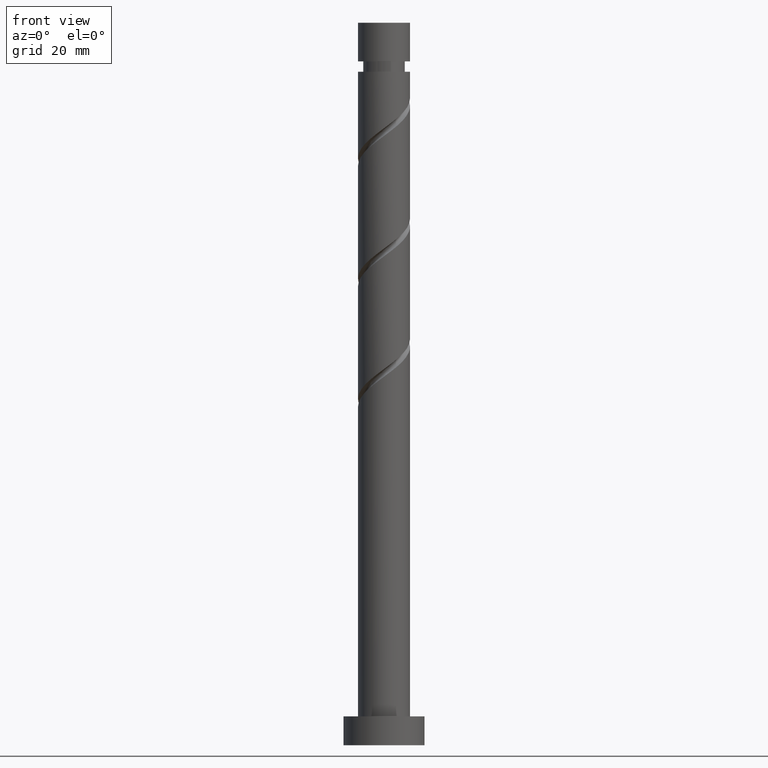
[diagram: clean part render]
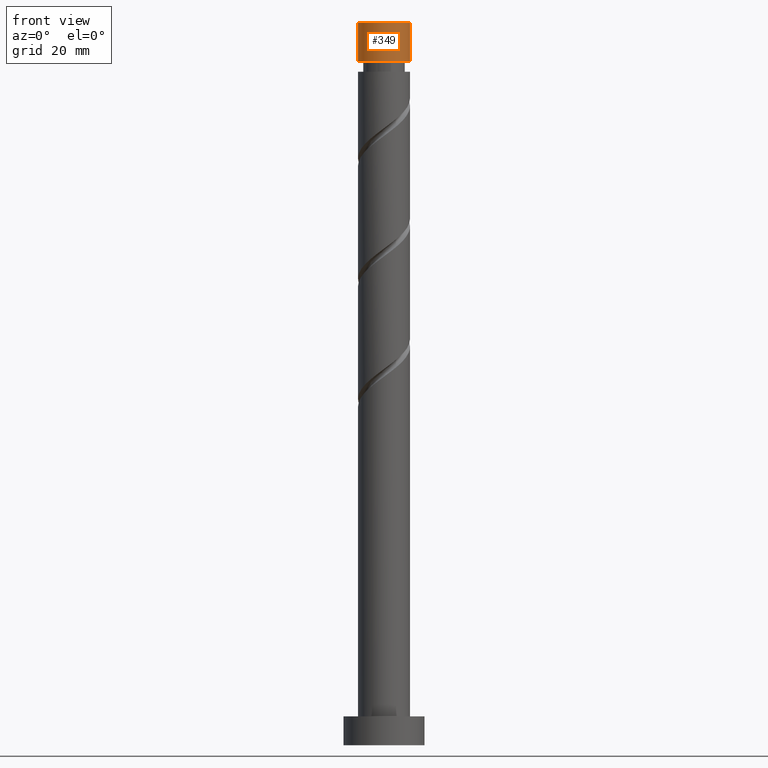
[diagram: same view with one face highlighted and labeled with its STEP entity id]
A machine part, front view. The second image highlights one B-rep face of the part: STEP entity #349.
In plain terms, the highlighted cylindrical surface (edge-blend (fillet) strip) has radius 4.5 mm, axis along (-0, -0, -1).
Its self-contained STEP definition (entity closure, byte-faithful):
#2 = EDGE_CURVE ( 'NONE', #1150, #1534, #122, .T. ) ;
#60 = CARTESIAN_POINT ( 'NONE',  ( 4.500000000000000000, 5.510910596163088569E-16, 125.0000000000000000 ) ) ;
#100 = ORIENTED_EDGE ( 'NONE', *, *, #2, .F. ) ;
#122 = CIRCLE ( 'NONE', #1270, 4.500000000000000000 ) ;
#185 = DIRECTION ( 'NONE',  ( 0.000000000000000000, 0.000000000000000000, 1.000000000000000000 ) ) ;
#186 = CARTESIAN_POINT ( 'NONE',  ( 0.000000000000000000, 0.000000000000000000, 125.0000000000000000 ) ) ;
#201 = CARTESIAN_POINT ( 'NONE',  ( -4.500000000000000000, 0.000000000000000000, 125.0000000000000000 ) ) ;
#262 = EDGE_CURVE ( 'NONE', #1534, #1540, #1154, .T. ) ;
#288 = LINE ( 'NONE', #994, #866 ) ;
#349 = ADVANCED_FACE ( 'NONE', ( #806 ), #1531, .T. ) ;
#416 = DIRECTION ( 'NONE',  ( -0.000000000000000000, -0.000000000000000000, -1.000000000000000000 ) ) ;
#450 = DIRECTION ( 'NONE',  ( -0.000000000000000000, -0.000000000000000000, -1.000000000000000000 ) ) ;
#458 = DIRECTION ( 'NONE',  ( -1.000000000000000000, 0.000000000000000000, 0.000000000000000000 ) ) ;
#484 = CARTESIAN_POINT ( 'NONE',  ( 4.500000000000000000, 5.510910596163088569E-16, 125.0000000000000000 ) ) ;
#509 = AXIS2_PLACEMENT_3D ( 'NONE', #186, #450, #799 ) ;
#645 = ORIENTED_EDGE ( 'NONE', *, *, #262, .F. ) ;
#760 = DIRECTION ( 'NONE',  ( -0.000000000000000000, -0.000000000000000000, -1.000000000000000000 ) ) ;
#799 = DIRECTION ( 'NONE',  ( -1.000000000000000000, 0.000000000000000000, 0.000000000000000000 ) ) ;
#800 = ORIENTED_EDGE ( 'NONE', *, *, #971, .T. ) ;
#806 = FACE_OUTER_BOUND ( 'NONE', #1561, .T. ) ;
#866 = VECTOR ( 'NONE', #760, 1000.000000000000000 ) ;
#900 = ORIENTED_EDGE ( 'NONE', *, *, #1418, .F. ) ;
#902 = CARTESIAN_POINT ( 'NONE',  ( 0.000000000000000000, 0.000000000000000000, 125.0000000000000000 ) ) ;
#904 = CARTESIAN_POINT ( 'NONE',  ( -4.499999999999999112, 0.000000000000000000, 118.3150551129668315 ) ) ;
#971 = EDGE_CURVE ( 'NONE', #1150, #1424, #288, .T. ) ;
#994 = CARTESIAN_POINT ( 'NONE',  ( -4.500000000000000000, 0.000000000000000000, 125.0000000000000000 ) ) ;
#1036 = AXIS2_PLACEMENT_3D ( 'NONE', #1501, #416, #458 ) ;
#1150 = VERTEX_POINT ( 'NONE', #201 ) ;
#1154 = LINE ( 'NONE', #60, #1499 ) ;
#1217 = CIRCLE ( 'NONE', #1036, 4.499999999999999112 ) ;
#1254 = DIRECTION ( 'NONE',  ( -0.000000000000000000, -0.000000000000000000, -1.000000000000000000 ) ) ;
#1270 = AXIS2_PLACEMENT_3D ( 'NONE', #902, #185, #1514 ) ;
#1418 = EDGE_CURVE ( 'NONE', #1540, #1424, #1217, .T. ) ;
#1424 = VERTEX_POINT ( 'NONE', #904 ) ;
#1461 = CARTESIAN_POINT ( 'NONE',  ( 4.499999999999999112, 5.510910596163088569E-16, 118.3150551129668315 ) ) ;
#1499 = VECTOR ( 'NONE', #1254, 1000.000000000000000 ) ;
#1501 = CARTESIAN_POINT ( 'NONE',  ( 0.000000000000000000, 0.000000000000000000, 118.3150551129668315 ) ) ;
#1514 = DIRECTION ( 'NONE',  ( 1.000000000000000000, 0.000000000000000000, 0.000000000000000000 ) ) ;
#1531 = CYLINDRICAL_SURFACE ( 'NONE', #509, 4.500000000000000000 ) ;
#1534 = VERTEX_POINT ( 'NONE', #484 ) ;
#1540 = VERTEX_POINT ( 'NONE', #1461 ) ;
#1561 = EDGE_LOOP ( 'NONE', ( #645, #100, #800, #900 ) ) ;